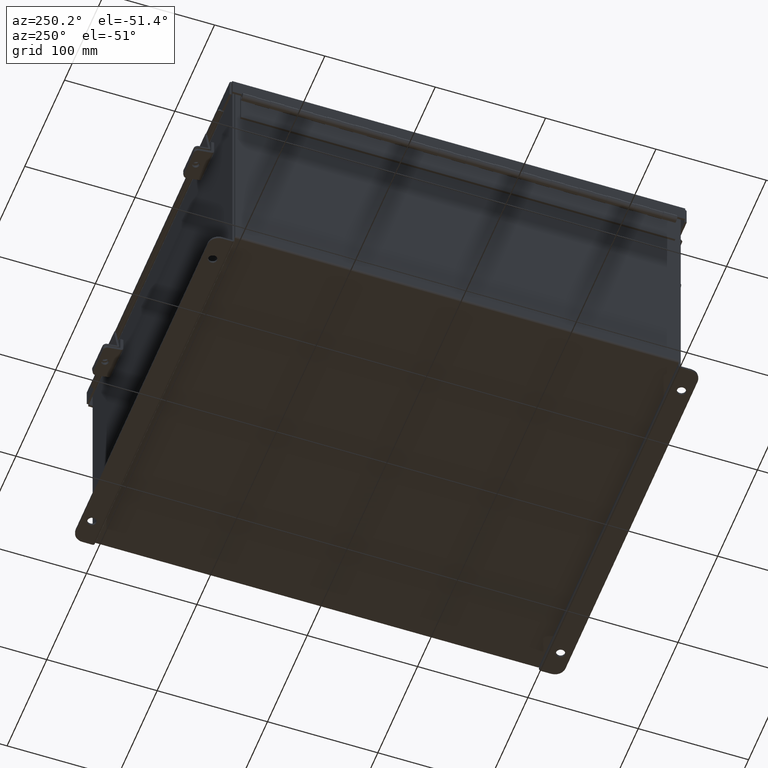
[diagram: clean part render]
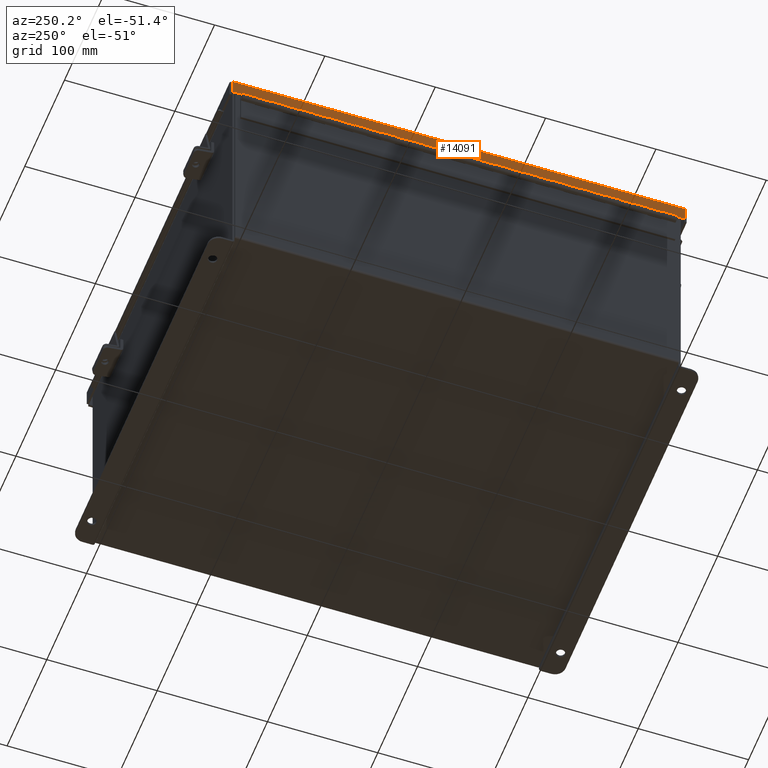
[diagram: same view with one face highlighted and labeled with its STEP entity id]
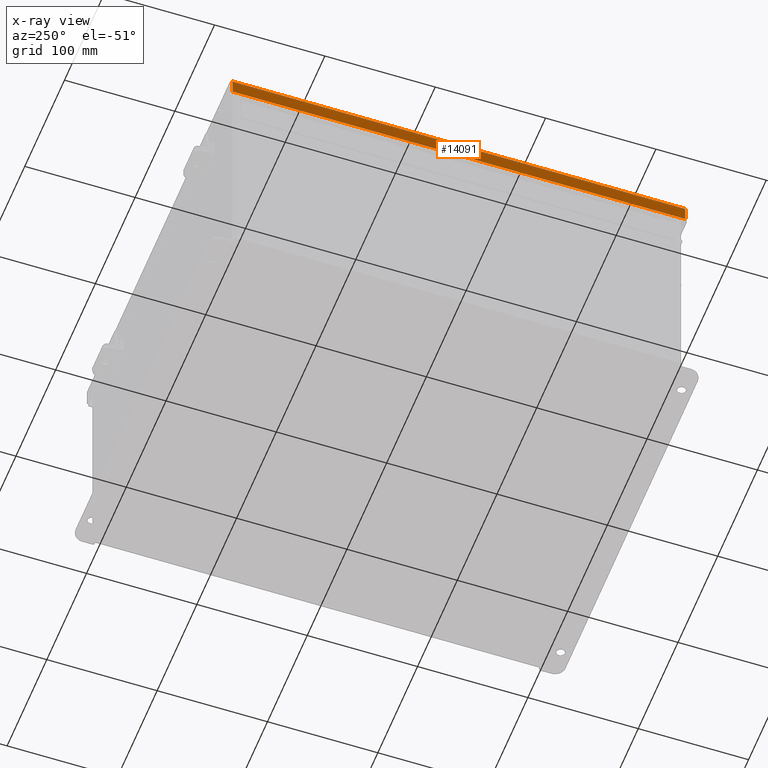
[diagram: x-ray of the same camera — body ghosted, the highlighted face saturated]
A machine part, auxiliary view. The second image highlights one B-rep face of the part: STEP entity #14091.
The next image is the same camera in x-ray: the body ghosted, the highlighted face saturated — about 0% of this face is hidden behind the body in this view.
In plain terms, the highlighted planar face has unit normal (1, -0, 0).
Its self-contained STEP definition (entity closure, byte-faithful):
#1066 = CARTESIAN_POINT ( 'NONE',  ( 7.156250000000018700, -8.074478932188132100, 0.0000000000000000000 ) ) ;
#1794 = CARTESIAN_POINT ( 'NONE',  ( 7.156250000000012400, 0.0000000000000000000, 0.5502999999999999000 ) ) ;
#1942 = DIRECTION ( 'NONE',  ( -1.000000000000000000, -3.214874041279299500E-030, 3.971430846686186800E-015 ) ) ;
#2008 = DIRECTION ( 'NONE',  ( -3.166671605124525800E-030, -1.000000000000000000, -1.853823127269377700E-029 ) ) ;
#2856 = VERTEX_POINT ( 'NONE', #10504 ) ;
#3250 = EDGE_CURVE ( 'NONE', #5321, #7256, #8677, .T. ) ;
#3669 = LINE ( 'NONE', #1066, #11465 ) ;
#4451 = EDGE_CURVE ( 'NONE', #10680, #2856, #5196, .T. ) ;
#5187 = CARTESIAN_POINT ( 'NONE',  ( 7.156250000000018700, -8.156249999999998200, 0.01300000000000010700 ) ) ;
#5196 = LINE ( 'NONE', #1794, #8829 ) ;
#5321 = VERTEX_POINT ( 'NONE', #9609 ) ;
#7087 = DIRECTION ( 'NONE',  ( 3.971430846686186800E-015, 1.846427556282924300E-029, 1.000000000000000000 ) ) ;
#7179 = EDGE_LOOP ( 'NONE', ( #13263, #7550, #7423, #9221 ) ) ;
#7256 = VERTEX_POINT ( 'NONE', #20157 ) ;
#7423 = ORIENTED_EDGE ( 'NONE', *, *, #4451, .T. ) ;
#7550 = ORIENTED_EDGE ( 'NONE', *, *, #10028, .T. ) ;
#8144 = PLANE ( 'NONE',  #8206 ) ;
#8152 = FACE_OUTER_BOUND ( 'NONE', #7179, .T. ) ;
#8206 = AXIS2_PLACEMENT_3D ( 'NONE', #11296, #1942, #12842 ) ;
#8677 = LINE ( 'NONE', #5187, #16928 ) ;
#8829 = VECTOR ( 'NONE', #2008, 39.37007874015748100 ) ;
#9221 = ORIENTED_EDGE ( 'NONE', *, *, #10677, .F. ) ;
#9609 = CARTESIAN_POINT ( 'NONE',  ( 7.156250000000018700, 8.074478932188135600, 0.01300000000000010700 ) ) ;
#10028 = EDGE_CURVE ( 'NONE', #5321, #10680, #18696, .T. ) ;
#10504 = CARTESIAN_POINT ( 'NONE',  ( 7.156250000000012400, -8.074478932188132100, 0.5502999999999999000 ) ) ;
#10677 = EDGE_CURVE ( 'NONE', #7256, #2856, #3669, .T. ) ;
#10680 = VERTEX_POINT ( 'NONE', #11991 ) ;
#11296 = CARTESIAN_POINT ( 'NONE',  ( 7.156250000000018700, 0.0000000000000000000, -2.841121913410833900E-014 ) ) ;
#11465 = VECTOR ( 'NONE', #13533, 39.37007874015748100 ) ;
#11991 = CARTESIAN_POINT ( 'NONE',  ( 7.156250000000012400, 8.074478932188135600, 0.5502999999999999000 ) ) ;
#12842 = DIRECTION ( 'NONE',  ( 3.971430846686186800E-015, 1.846427556282924000E-029, 1.000000000000000000 ) ) ;
#13263 = ORIENTED_EDGE ( 'NONE', *, *, #3250, .F. ) ;
#13533 = DIRECTION ( 'NONE',  ( 3.971430846686186800E-015, 1.846427556282924300E-029, 1.000000000000000000 ) ) ;
#14085 = VECTOR ( 'NONE', #7087, 39.37007874015748100 ) ;
#14091 = ADVANCED_FACE ( 'NONE', ( #8152 ), #8144, .F. ) ;
#16928 = VECTOR ( 'NONE', #20071, 39.37007874015748100 ) ;
#18696 = LINE ( 'NONE', #19498, #14085 ) ;
#19498 = CARTESIAN_POINT ( 'NONE',  ( 7.156250000000018700, 8.074478932188135600, -2.841121913410833900E-014 ) ) ;
#20071 = DIRECTION ( 'NONE',  ( -3.166671605124525800E-030, -1.000000000000000000, -1.853823127269377700E-029 ) ) ;
#20157 = CARTESIAN_POINT ( 'NONE',  ( 7.156250000000018700, -8.074478932188130300, 0.01300000000000010700 ) ) ;